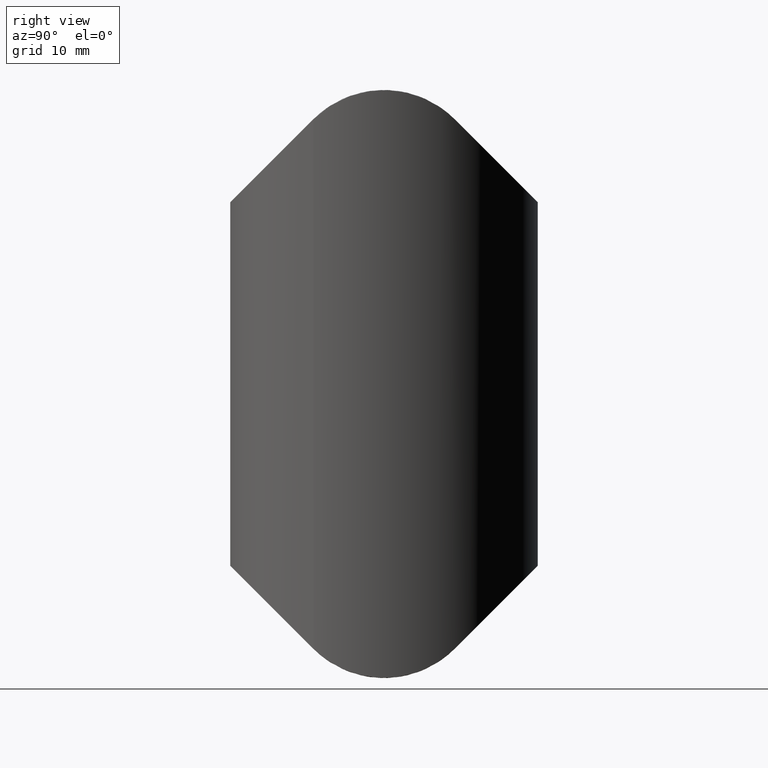
[diagram: clean part render]
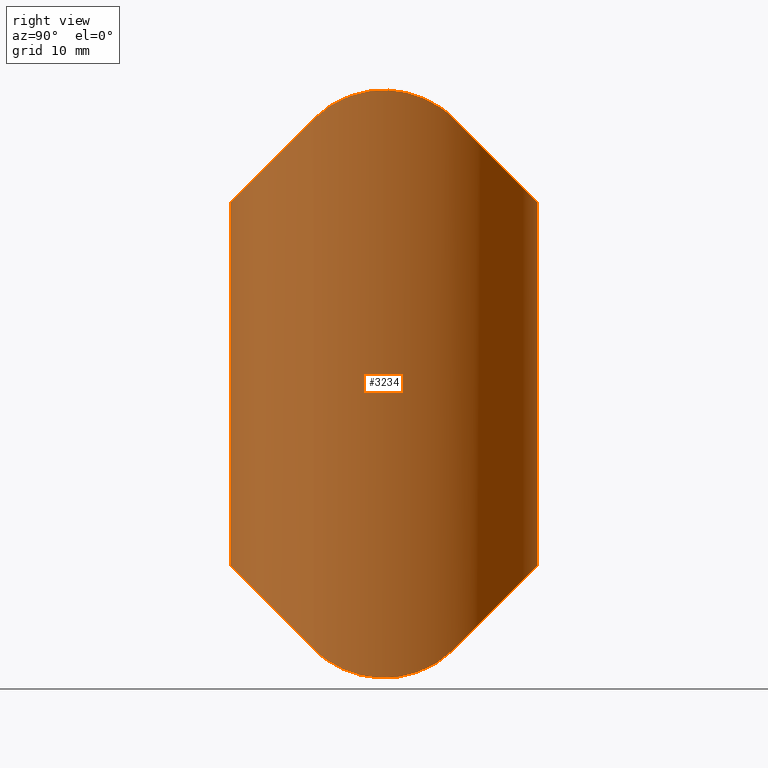
[diagram: same view with one face highlighted and labeled with its STEP entity id]
A machine part, right view. The second image highlights one B-rep face of the part: STEP entity #3234.
In plain terms, the highlighted cylindrical surface (bore or boss wall) has radius 21.2 mm, axis along (0, 0, 1).
Its self-contained STEP definition (entity closure, byte-faithful):
#150 = CARTESIAN_POINT ( 'NONE',  ( 21.12346836255195726, -1.858243533587752738, 40.38184902653045327 ) ) ;
#539 = CARTESIAN_POINT ( 'NONE',  ( -19.46034636071663115, -8.418621072527825433, 37.63325328732884145 ) ) ;
#636 = CARTESIAN_POINT ( 'NONE',  ( -20.02329595064998458, 6.976870242549930268, 38.60856781017730555 ) ) ;
#760 = CARTESIAN_POINT ( 'NONE',  ( 9.820265530856222114, -27.18000819149182234, -19.01999180850818050 ) ) ;
#885 = VERTEX_POINT ( 'NONE', #3470 ) ;
#940 = CARTESIAN_POINT ( 'NONE',  ( 18.99361704072536483, 9.423478076060913367, -36.77652192393910013 ) ) ;
#1092 = CARTESIAN_POINT ( 'NONE',  ( 18.83499937240519273, 9.730508652763015576, 36.46949134723699615 ) ) ;
#1114 = CYLINDRICAL_SURFACE ( 'NONE', #5150, 21.19999999999999929 ) ;
#1144 = CARTESIAN_POINT ( 'NONE',  ( 18.83499937240519273, 9.730508652763015576, -36.46949134723698904 ) ) ;
#1178 = CARTESIAN_POINT ( 'NONE',  ( -19.15218134551562557, 9.116550793244869055, -37.08344920675512668 ) ) ;
#1209 = CARTESIAN_POINT ( 'NONE',  ( 19.89357125596783504, 7.337516679295036148, 38.38888622943100870 ) ) ;
#1258 = CARTESIAN_POINT ( 'NONE',  ( 18.83499937240519273, -9.730508652762148714, 36.46949134723698904 ) ) ;
#1359 = CARTESIAN_POINT ( 'NONE',  ( 21.08072273140682995, 2.291549263538570802, 40.31570738304446166 ) ) ;
#1493 = EDGE_CURVE ( 'NONE', #10196, #4546, #5256, .T. ) ;
#1573 = CARTESIAN_POINT ( 'NONE',  ( -18.83499937240520694, 9.730508652763015576, 36.46949134723698904 ) ) ;
#1618 = EDGE_CURVE ( 'NONE', #885, #11410, #5030, .T. ) ;
#1832 = CARTESIAN_POINT ( 'NONE',  ( 18.83499937240524602, -9.730508652762036803, -36.46949134723710273 ) ) ;
#1920 = CARTESIAN_POINT ( 'NONE',  ( 20.96005808545679372, 3.213238178656963040, -40.12758604792728079 ) ) ;
#1963 = CARTESIAN_POINT ( 'NONE',  ( 21.19968661832167456, -0.9429930632126419798, -40.49951720923388621 ) ) ;
#2013 = CARTESIAN_POINT ( 'NONE',  ( 21.18474800429779492, 0.9273776347694772104, -40.47653766429938571 ) ) ;
#2224 = CARTESIAN_POINT ( 'NONE',  ( -20.96005808545692517, -3.213238178656099731, -40.12758604792728789 ) ) ;
#2300 = DIRECTION ( 'NONE',  ( 0.000000000000000000, 0.000000000000000000, 1.000000000000000000 ) ) ;
#2307 = CARTESIAN_POINT ( 'NONE',  ( 19.60904163214810225, 8.067144141757047748, 37.89606962560670667 ) ) ;
#2359 = CARTESIAN_POINT ( 'NONE',  ( 21.19971376188618351, -0.4738592955327006750, 40.49955902609302427 ) ) ;
#2447 = CARTESIAN_POINT ( 'NONE',  ( 20.02329595065031143, -6.976870242549034984, 38.60856781017733397 ) ) ;
#2454 = B_SPLINE_CURVE_WITH_KNOTS ( 'NONE', 3,
 ( #2895, #940, #13387, #5100, #9198, #7163, #4078, #7118, #11379, #8294, #1920, #11428, #8251, #2013, #8155, #1963, #2937, #9295, #10251, #2984, #3026, #5146, #3983, #11333, #5049, #12569 ),
 .UNSPECIFIED., .F., .F.,
 ( 4, 2, 2, 2, 2, 2, 2, 2, 2, 2, 2, 2, 4 ),
 ( 0.07764464149318352215, 0.07902640294229942852, 0.08040816439141533489, 0.08317168728964713376, 0.08455344873876304013, 0.08593521018787894650, 0.08731697163699485287, 0.08869873308611075924, 0.09146225598434255810, 0.09284401743345847835, 0.09422577888257438472, 0.09698930178080619746, 0.09975282467903802408 ),
 .UNSPECIFIED. ) ;
#2601 = ORIENTED_EDGE ( 'NONE', *, *, #10021, .F. ) ;
#2656 = CARTESIAN_POINT ( 'NONE',  ( -21.20027828615866738, -0.4478915128672862900, 40.50042872325228416 ) ) ;
#2673 = ORIENTED_EDGE ( 'NONE', *, *, #2810, .F. ) ;
#2744 = CARTESIAN_POINT ( 'NONE',  ( -20.02941555302238186, -6.959370947203015412, 38.61888801350959710 ) ) ;
#2810 = EDGE_CURVE ( 'NONE', #2929, #12368, #4420, .T. ) ;
#2895 = CARTESIAN_POINT ( 'NONE',  ( 18.83499937240519273, 9.730508652763015576, -36.46949134723698904 ) ) ;
#2929 = VERTEX_POINT ( 'NONE', #10453 ) ;
#2937 = CARTESIAN_POINT ( 'NONE',  ( 21.13773130579486903, -1.858583476789616329, -40.40459838906048162 ) ) ;
#2974 =( BOUNDED_CURVE ( )  B_SPLINE_CURVE ( 3, ( #10110, #11329, #12335, #11284 ),
 .UNSPECIFIED., .F., .T. ) 
 B_SPLINE_CURVE_WITH_KNOTS ( ( 4, 4 ),
 ( 2.047650156017112977, 4.235535151162473255 ),
 .UNSPECIFIED. ) 
 CURVE ( )  GEOMETRIC_REPRESENTATION_ITEM ( )  RATIONAL_B_SPLINE_CURVE ( ( 1.000000000000000000, 0.6393241714705079071, 0.6393241714705079071, 1.000000000000000000 ) ) 
 REPRESENTATION_ITEM ( '' )  );
#2984 = CARTESIAN_POINT ( 'NONE',  ( 20.71624543068065094, -4.525176645835776945, -39.74281353956129692 ) ) ;
#3026 = CARTESIAN_POINT ( 'NONE',  ( 20.61820222885238252, -4.951036764504991972, -39.58634988557577827 ) ) ;
#3211 = CARTESIAN_POINT ( 'NONE',  ( -18.83499937240520339, 9.730508652763015576, -36.46949134723698194 ) ) ;
#3234 = ADVANCED_FACE ( 'NONE', ( #7072, #3934 ), #1114, .T. ) ;
#3280 = CARTESIAN_POINT ( 'NONE',  ( -20.88866697564527897, 3.647415578296594685, -40.01577447271876053 ) ) ;
#3302 = DIRECTION ( 'NONE',  ( 1.000000000000000000, 0.000000000000000000, 0.000000000000000000 ) ) ;
#3327 = CARTESIAN_POINT ( 'NONE',  ( -18.83499937240520339, 9.730508652763015576, -36.46949134723698194 ) ) ;
#3470 = CARTESIAN_POINT ( 'NONE',  ( 18.83499937240519273, -9.730508652762148714, 36.46949134723698904 ) ) ;
#3487 = CARTESIAN_POINT ( 'NONE',  ( 19.46034636071605561, 8.418621072529150595, 37.63325328732850039 ) ) ;
#3654 = CARTESIAN_POINT ( 'NONE',  ( -20.28510083264173502, -6.174545779730336470, 39.04507788279587999 ) ) ;
#3690 = EDGE_LOOP ( 'NONE', ( #13251, #9080, #2673, #2601 ) ) ;
#3692 = CARTESIAN_POINT ( 'NONE',  ( -21.12346836255185778, 1.858243533588889829, 40.38184902653041775 ) ) ;
#3736 = CARTESIAN_POINT ( 'NONE',  ( -20.39944044578754045, 5.786888060899340935, 39.23226201715720407 ) ) ;
#3934 = FACE_OUTER_BOUND ( 'NONE', #6417, .T. ) ;
#3983 = CARTESIAN_POINT ( 'NONE',  ( 20.03591136663712291, -6.973277503758230189, -38.63556210427299220 ) ) ;
#4057 = ORIENTED_EDGE ( 'NONE', *, *, #11158, .F. ) ;
#4078 = CARTESIAN_POINT ( 'NONE',  ( 20.29368334691310238, 6.191126545092178191, -39.06109055520405349 ) ) ;
#4145 = CARTESIAN_POINT ( 'NONE',  ( -19.60703176674718762, -8.072183189594072772, -37.89256795755425600 ) ) ;
#4190 = CARTESIAN_POINT ( 'NONE',  ( -21.07907640933145288, -2.306831651436078268, -40.31315401654030239 ) ) ;
#4280 = CARTESIAN_POINT ( 'NONE',  ( -19.45677219646942291, -8.426822306801737383, -37.62685712335890997 ) ) ;
#4347 = CARTESIAN_POINT ( 'NONE',  ( 0.000000000000000000, 0.000000000000000000, -46.00000000000000000 ) ) ;
#4356 = CARTESIAN_POINT ( 'NONE',  ( 20.39944044578780336, -5.786888060898394137, 39.23226201715723960 ) ) ;
#4371 = CARTESIAN_POINT ( 'NONE',  ( -19.46123568627053046, 8.445392175594298223, -37.63992539675882654 ) ) ;
#4420 = B_SPLINE_CURVE_WITH_KNOTS ( 'NONE', 3,
 ( #1573, #8862, #10090, #6837, #636, #10010, #3736, #7821, #6966, #12090, #3692, #7911, #9910, #2656, #5903, #13065, #4705, #4797, #6877, #9961, #3654, #2744, #5734, #10051, #539, #5817, #9044, #12134 ),
 .UNSPECIFIED., .F., .F.,
 ( 4, 2, 2, 2, 2, 2, 2, 2, 2, 2, 2, 2, 2, 4 ),
 ( 0.03331886224794144979, 0.03607999693348572928, 0.03746056427625785862, 0.03884113161902999489, 0.04160226630457425356, 0.04298283364734637596, 0.04436340099011850530, 0.04574396833289062769, 0.04712453567566275703, 0.04988567036120701570, 0.05126623770397913116, 0.05264680504675125355, 0.05402737238952337595, 0.05540793973229549835 ),
 .UNSPECIFIED. ) ;
#4441 = CARTESIAN_POINT ( 'NONE',  ( 19.15315281328652830, 9.095878107844287186, 37.07451915662269215 ) ) ;
#4488 = CARTESIAN_POINT ( 'NONE',  ( 21.12600908517147857, 1.828766462466603793, 40.38578035630867191 ) ) ;
#4546 = VERTEX_POINT ( 'NONE', #1144 ) ;
#4616 = VERTEX_POINT ( 'NONE', #8543 ) ;
#4705 = CARTESIAN_POINT ( 'NONE',  ( -21.08072273140696851, -2.291549263537291381, 40.31570738304453272 ) ) ;
#4797 = CARTESIAN_POINT ( 'NONE',  ( -20.90360964005689226, -3.648476344835876350, 40.03960048832311003 ) ) ;
#5030 = B_SPLINE_CURVE_WITH_KNOTS ( 'NONE', 3,
 ( #1258, #5572, #12759, #9707, #2447, #7565, #4356, #12901, #10723, #6614, #150, #8610, #2359, #10772, #9658, #4488, #1359, #6658, #8566, #7657, #7518, #9750, #1209, #2307, #3487, #4441, #10818, #9613 ),
 .UNSPECIFIED., .F., .F.,
 ( 4, 2, 2, 2, 2, 2, 2, 2, 2, 2, 2, 2, 2, 4 ),
 ( 0.03331886224794061713, 0.03607999693348495907, 0.03746056427625713697, 0.03884113161902930794, 0.04160226630457366376, 0.04298283364734584167, 0.04436340099011801957, 0.04574396833289019748, 0.04712453567566236845, 0.04988567036120672427, 0.05126623770397889523, 0.05264680504675107314, 0.05402737238952325105, 0.05540793973229542202 ),
 .UNSPECIFIED. ) ;
#5049 = CARTESIAN_POINT ( 'NONE',  ( 19.15218134551605189, -9.116550793243982653, -37.08344920675515510 ) ) ;
#5100 = CARTESIAN_POINT ( 'NONE',  ( 19.45677219646908185, 8.426822306802524309, -37.62685712335898103 ) ) ;
#5146 = CARTESIAN_POINT ( 'NONE',  ( 20.29340794011469029, -6.192714021285354420, -39.06066830755250407 ) ) ;
#5150 = AXIS2_PLACEMENT_3D ( 'NONE', #4347, #2300, #3302 ) ;
#5196 = CARTESIAN_POINT ( 'NONE',  ( 9.820265530855831315, 27.18000819149150971, -19.01999180850848958 ) ) ;
#5256 =( BOUNDED_CURVE ( )  B_SPLINE_CURVE ( 3, ( #3211, #6434, #5196, #12519 ),
 .UNSPECIFIED., .F., .T. ) 
 B_SPLINE_CURVE_WITH_KNOTS ( ( 4, 4 ),
 ( 5.189242809606952278, 7.377127804752220186 ),
 .UNSPECIFIED. ) 
 CURVE ( )  GEOMETRIC_REPRESENTATION_ITEM ( )  RATIONAL_B_SPLINE_CURVE ( ( 1.000000000000000000, 0.6393241714705353296, 0.6393241714705353296, 1.000000000000000000 ) ) 
 REPRESENTATION_ITEM ( '' )  );
#5264 = CARTESIAN_POINT ( 'NONE',  ( -21.20015492158452375, -0.4608887706313387067, -40.50023866969794284 ) ) ;
#5536 = CARTESIAN_POINT ( 'NONE',  ( -20.71624543068045554, 4.525176645836684663, -39.74281353956128982 ) ) ;
#5572 = CARTESIAN_POINT ( 'NONE',  ( 19.15501756599514138, -9.111060822179801733, 37.08893917781937688 ) ) ;
#5734 = CARTESIAN_POINT ( 'NONE',  ( -19.89357125596832532, -7.337516679293703881, 38.38888622943132845 ) ) ;
#5817 = CARTESIAN_POINT ( 'NONE',  ( -19.15315281328715002, -9.095878107842974458, 37.07451915662307584 ) ) ;
#5903 = CARTESIAN_POINT ( 'NONE',  ( -21.18554752227540661, -0.9084177576427635570, 40.47776904461773739 ) ) ;
#6135 = CARTESIAN_POINT ( 'NONE',  ( -18.83499937240521049, -9.730508652762143385, -36.46949134723699615 ) ) ;
#6252 = CARTESIAN_POINT ( 'NONE',  ( -19.15038341328806126, -9.101655542799795384, -37.06937524024874619 ) ) ;
#6417 = EDGE_LOOP ( 'NONE', ( #10243, #13507, #10047, #4057 ) ) ;
#6434 = CARTESIAN_POINT ( 'NONE',  ( -9.820265530855847302, 27.18000819149150615, -19.01999180850849314 ) ) ;
#6471 = VERTEX_POINT ( 'NONE', #6135 ) ;
#6614 = CARTESIAN_POINT ( 'NONE',  ( 21.07747134427587810, -2.320917980674235714, 40.31066078087495441 ) ) ;
#6658 = CARTESIAN_POINT ( 'NONE',  ( 20.90360964005665423, 3.648476344837193519, 40.03960048832297502 ) ) ;
#6837 = CARTESIAN_POINT ( 'NONE',  ( -19.88780424244403733, 7.353005007362345857, 38.37902278576839166 ) ) ;
#6877 = CARTESIAN_POINT ( 'NONE',  ( -20.73135992332422362, -4.515779236006382646, 39.76938014245573783 ) ) ;
#6915 = CARTESIAN_POINT ( 'NONE',  ( -18.83499937240520694, 9.730508652763015576, 36.46949134723698904 ) ) ;
#6966 = CARTESIAN_POINT ( 'NONE',  ( -20.89927434679596985, 3.672351555135557888, 40.03279582774007395 ) ) ;
#7001 = CARTESIAN_POINT ( 'NONE',  ( 18.83499937240519273, 9.730508652763015576, 36.46949134723699615 ) ) ;
#7072 = FACE_OUTER_BOUND ( 'NONE', #3690, .T. ) ;
#7118 = CARTESIAN_POINT ( 'NONE',  ( 20.61678681713157602, 4.956713554108247877, -39.58407071332246119 ) ) ;
#7163 = CARTESIAN_POINT ( 'NONE',  ( 20.03741869007825827, 6.968873426379229130, -38.63807652496581824 ) ) ;
#7308 = CARTESIAN_POINT ( 'NONE',  ( -21.12421018317411026, -1.849681437478751134, -40.38299692805967567 ) ) ;
#7355 = CARTESIAN_POINT ( 'NONE',  ( -21.13773130579479087, 1.858583476790526934, -40.40459838906048873 ) ) ;
#7518 = CARTESIAN_POINT ( 'NONE',  ( 20.28510083264133002, 6.174545779731677619, 39.04507788279563840 ) ) ;
#7565 = CARTESIAN_POINT ( 'NONE',  ( 20.27879337997095988, -6.195130197271180528, 39.03467832502505530 ) ) ;
#7578 = CARTESIAN_POINT ( 'NONE',  ( -20.61820222885216936, 4.951036764505897914, -39.58634988557577827 ) ) ;
#7657 = CARTESIAN_POINT ( 'NONE',  ( 20.40544735698425782, 5.765683372856501343, 39.24206124123157480 ) ) ;
#7821 = CARTESIAN_POINT ( 'NONE',  ( -20.72653577559304594, 4.537806790235537235, 39.76172911530899512 ) ) ;
#7841 =( BOUNDED_CURVE ( )  B_SPLINE_CURVE ( 3, ( #1832, #760, #13354, #12440 ),
 .UNSPECIFIED., .F., .T. ) 
 B_SPLINE_CURVE_WITH_KNOTS ( ( 4, 4 ),
 ( 5.189242809606927409, 7.377127804752239726 ),
 .UNSPECIFIED. ) 
 CURVE ( )  GEOMETRIC_REPRESENTATION_ITEM ( )  RATIONAL_B_SPLINE_CURVE ( ( 1.000000000000000000, 0.6393241714705221179, 0.6393241714705221179, 1.000000000000000000 ) ) 
 REPRESENTATION_ITEM ( '' )  );
#7911 = CARTESIAN_POINT ( 'NONE',  ( -21.18441887088227560, 0.9350838448293871119, 40.47603073936419094 ) ) ;
#8155 = CARTESIAN_POINT ( 'NONE',  ( 21.20015492158450598, 0.4608887706322382094, -40.50023866969794284 ) ) ;
#8251 = CARTESIAN_POINT ( 'NONE',  ( 21.12421018317403210, 1.849681437479641533, -40.38299692805967567 ) ) ;
#8294 = CARTESIAN_POINT ( 'NONE',  ( 20.88574899550933850, 3.663628121000158444, -40.01117875826825809 ) ) ;
#8362 = CARTESIAN_POINT ( 'NONE',  ( -18.83499937240521049, -9.730508652762143385, -36.46949134723699615 ) ) ;
#8494 = CARTESIAN_POINT ( 'NONE',  ( -20.61678681713177497, -4.956713554107406772, -39.58407071332244698 ) ) ;
#8534 = CARTESIAN_POINT ( 'NONE',  ( -20.03591136663680317, 6.973277503759153895, -38.63556210427296378 ) ) ;
#8543 = CARTESIAN_POINT ( 'NONE',  ( 18.83499937240524602, -9.730508652762036803, -36.46949134723710273 ) ) ;
#8566 = CARTESIAN_POINT ( 'NONE',  ( 20.73135992332393229, 4.515779236007721131, 39.76938014245556730 ) ) ;
#8610 = CARTESIAN_POINT ( 'NONE',  ( 21.18441887088233599, -0.9350838448282043913, 40.47603073936424067 ) ) ;
#8862 = CARTESIAN_POINT ( 'NONE',  ( -19.15501756599474703, 9.111060822180602869, 37.08893917781942662 ) ) ;
#8947 = CARTESIAN_POINT ( 'NONE',  ( 9.820265530855843750, 27.18000819149151326, 19.01999180850849314 ) ) ;
#9044 = CARTESIAN_POINT ( 'NONE',  ( -18.99427749465906601, -9.422199658881346807, 36.77780034111777496 ) ) ;
#9080 = ORIENTED_EDGE ( 'NONE', *, *, #11670, .F. ) ;
#9198 = CARTESIAN_POINT ( 'NONE',  ( 19.60703176674686077, 8.072183189594873909, -37.89256795755428442 ) ) ;
#9295 = CARTESIAN_POINT ( 'NONE',  ( 20.96140617599624534, -3.203740852339750145, -40.12969173941883128 ) ) ;
#9400 = CARTESIAN_POINT ( 'NONE',  ( -20.71426329877467865, -4.533870101959124987, -39.73965118741435987 ) ) ;
#9440 = CARTESIAN_POINT ( 'NONE',  ( -20.03741869007854248, -6.968873426378418223, -38.63807652496580403 ) ) ;
#9538 = CARTESIAN_POINT ( 'NONE',  ( -20.96140617599609968, 3.203740852340664080, -40.12969173941883128 ) ) ;
#9613 = CARTESIAN_POINT ( 'NONE',  ( 18.83499937240519273, 9.730508652763015576, 36.46949134723699615 ) ) ;
#9658 = CARTESIAN_POINT ( 'NONE',  ( 21.18554752227535687, 0.9084177576440185531, 40.47776904461771608 ) ) ;
#9707 = CARTESIAN_POINT ( 'NONE',  ( 19.88780424244437128, -7.353005007361467449, 38.37902278576839166 ) ) ;
#9750 = CARTESIAN_POINT ( 'NONE',  ( 20.02941555302192000, 6.959370947204352120, 38.61888801350933420 ) ) ;
#9910 = CARTESIAN_POINT ( 'NONE',  ( -21.19971376188615508, 0.4738592955339063217, 40.49955902609300296 ) ) ;
#9961 = CARTESIAN_POINT ( 'NONE',  ( -20.40544735698464507, -5.765683372855159305, 39.24206124123179507 ) ) ;
#10010 = CARTESIAN_POINT ( 'NONE',  ( -20.27879337997067211, 6.195130197272108674, 39.03467832502501267 ) ) ;
#10021 = EDGE_CURVE ( 'NONE', #11410, #2929, #11721, .T. ) ;
#10047 = ORIENTED_EDGE ( 'NONE', *, *, #12503, .F. ) ;
#10051 = CARTESIAN_POINT ( 'NONE',  ( -19.60904163214864937, -8.067144141755720810, 37.89606962560702641 ) ) ;
#10090 = CARTESIAN_POINT ( 'NONE',  ( -19.46292209534949791, 8.440404279810351795, 37.64272735423808314 ) ) ;
#10110 = CARTESIAN_POINT ( 'NONE',  ( -18.83499937240564748, -9.730508652762148714, 36.46949134723785590 ) ) ;
#10196 = VERTEX_POINT ( 'NONE', #11856 ) ;
#10243 = ORIENTED_EDGE ( 'NONE', *, *, #13460, .F. ) ;
#10251 = CARTESIAN_POINT ( 'NONE',  ( 20.88866697564543173, -3.647415578295679861, -40.01577447271878185 ) ) ;
#10408 = CARTESIAN_POINT ( 'NONE',  ( -18.99361704072574497, -9.423478076060131770, -36.77652192393902197 ) ) ;
#10453 = CARTESIAN_POINT ( 'NONE',  ( -18.83499937240520694, 9.730508652763015576, 36.46949134723698904 ) ) ;
#10723 = CARTESIAN_POINT ( 'NONE',  ( 20.89927434679616169, -3.672351555134499179, 40.03279582774013079 ) ) ;
#10772 = CARTESIAN_POINT ( 'NONE',  ( 21.20027828615864252, 0.4478915128685244107, 40.50042872325227705 ) ) ;
#10818 = CARTESIAN_POINT ( 'NONE',  ( 18.99427749465843362, 9.422199658882645323, 36.77780034111735574 ) ) ;
#11158 = EDGE_CURVE ( 'NONE', #4616, #6471, #7841, .T. ) ;
#11259 = CARTESIAN_POINT ( 'NONE',  ( -18.83499937240564748, -9.730508652762148714, 36.46949134723785590 ) ) ;
#11284 = CARTESIAN_POINT ( 'NONE',  ( 18.83499937240519273, -9.730508652762148714, 36.46949134723698904 ) ) ;
#11329 = CARTESIAN_POINT ( 'NONE',  ( -9.820265530856495673, -27.18000819149221314, 19.01999180850778970 ) ) ;
#11333 = CARTESIAN_POINT ( 'NONE',  ( 19.46123568627092126, -8.445392175593399386, -37.63992539675888338 ) ) ;
#11379 = CARTESIAN_POINT ( 'NONE',  ( 20.71426329877448680, 4.533870101959970533, -39.73965118741437408 ) ) ;
#11410 = VERTEX_POINT ( 'NONE', #1092 ) ;
#11428 = CARTESIAN_POINT ( 'NONE',  ( 21.07907640933136406, 2.306831651436949571, -40.31315401654030950 ) ) ;
#11482 = B_SPLINE_CURVE_WITH_KNOTS ( 'NONE', 3,
 ( #8362, #10408, #6252, #4280, #4145, #9440, #11629, #8494, #9400, #11491, #2224, #4190, #7308, #11540, #5264, #12588, #7355, #9538, #3280, #5536, #7578, #11858, #8534, #4371, #1178, #3327 ),
 .UNSPECIFIED., .F., .F.,
 ( 4, 2, 2, 2, 2, 2, 2, 2, 2, 2, 2, 2, 4 ),
 ( 0.07764464149318392461, 0.07902640294229984486, 0.08040816439141575123, 0.08317168728964759172, 0.08455344873876349809, 0.08593521018787941834, 0.08731697163699533859, 0.08869873308611125884, 0.09146225598434308546, 0.09284401743345900571, 0.09422577888257491208, 0.09698930178080675257, 0.09975282467903859307 ),
 .UNSPECIFIED. ) ;
#11491 = CARTESIAN_POINT ( 'NONE',  ( -20.88574899550950192, -3.663628120999293802, -40.01117875826823678 ) ) ;
#11540 = CARTESIAN_POINT ( 'NONE',  ( -21.18474800429783755, -0.9273776347685764865, -40.47653766429937860 ) ) ;
#11629 = CARTESIAN_POINT ( 'NONE',  ( -20.29368334691335463, -6.191126545091360178, -39.06109055520403217 ) ) ;
#11670 = EDGE_CURVE ( 'NONE', #12368, #885, #2974, .T. ) ;
#11721 =( BOUNDED_CURVE ( )  B_SPLINE_CURVE ( 3, ( #7001, #8947, #13188, #6915 ),
 .UNSPECIFIED., .F., .T. ) 
 B_SPLINE_CURVE_WITH_KNOTS ( ( 4, 4 ),
 ( 2.047650156017158718, 4.235535151162427070 ),
 .UNSPECIFIED. ) 
 CURVE ( )  GEOMETRIC_REPRESENTATION_ITEM ( )  RATIONAL_B_SPLINE_CURVE ( ( 1.000000000000000000, 0.6393241714705351075, 0.6393241714705351075, 1.000000000000000000 ) ) 
 REPRESENTATION_ITEM ( '' )  );
#11856 = CARTESIAN_POINT ( 'NONE',  ( -18.83499937240520339, 9.730508652763015576, -36.46949134723698194 ) ) ;
#11858 = CARTESIAN_POINT ( 'NONE',  ( -20.29340794011442739, 6.192714021286250592, -39.06066830755248986 ) ) ;
#12090 = CARTESIAN_POINT ( 'NONE',  ( -21.07747134427575375, 2.320917980675347714, 40.31066078087490467 ) ) ;
#12134 = CARTESIAN_POINT ( 'NONE',  ( -18.83499937240564748, -9.730508652762148714, 36.46949134723785590 ) ) ;
#12335 = CARTESIAN_POINT ( 'NONE',  ( 9.820265530856481462, -27.18000819149222735, 19.01999180850778259 ) ) ;
#12368 = VERTEX_POINT ( 'NONE', #11259 ) ;
#12440 = CARTESIAN_POINT ( 'NONE',  ( -18.83499937240521049, -9.730508652762143385, -36.46949134723699615 ) ) ;
#12503 = EDGE_CURVE ( 'NONE', #6471, #10196, #11482, .T. ) ;
#12519 = CARTESIAN_POINT ( 'NONE',  ( 18.83499937240519273, 9.730508652763015576, -36.46949134723698904 ) ) ;
#12569 = CARTESIAN_POINT ( 'NONE',  ( 18.83499937240524602, -9.730508652762036803, -36.46949134723710273 ) ) ;
#12588 = CARTESIAN_POINT ( 'NONE',  ( -21.19968661832163548, 0.9429930632135417046, -40.49951720923387910 ) ) ;
#12759 = CARTESIAN_POINT ( 'NONE',  ( 19.46292209534986029, -8.440404279809518684, 37.64272735423806893 ) ) ;
#12901 = CARTESIAN_POINT ( 'NONE',  ( 20.72653577559326976, -4.537806790234519383, 39.76172911530904486 ) ) ;
#13065 = CARTESIAN_POINT ( 'NONE',  ( -21.12600908517157805, -1.828766462465328146, 40.38578035630874297 ) ) ;
#13188 = CARTESIAN_POINT ( 'NONE',  ( -9.820265530855831315, 27.18000819149152036, 19.01999180850848248 ) ) ;
#13251 = ORIENTED_EDGE ( 'NONE', *, *, #1618, .F. ) ;
#13354 = CARTESIAN_POINT ( 'NONE',  ( -9.820265530856083558, -27.18000819149187919, -19.01999180850812010 ) ) ;
#13387 = CARTESIAN_POINT ( 'NONE',  ( 19.15038341328768823, 9.101655542800576981, -37.06937524024883146 ) ) ;
#13460 = EDGE_CURVE ( 'NONE', #4546, #4616, #2454, .T. ) ;
#13507 = ORIENTED_EDGE ( 'NONE', *, *, #1493, .F. ) ;